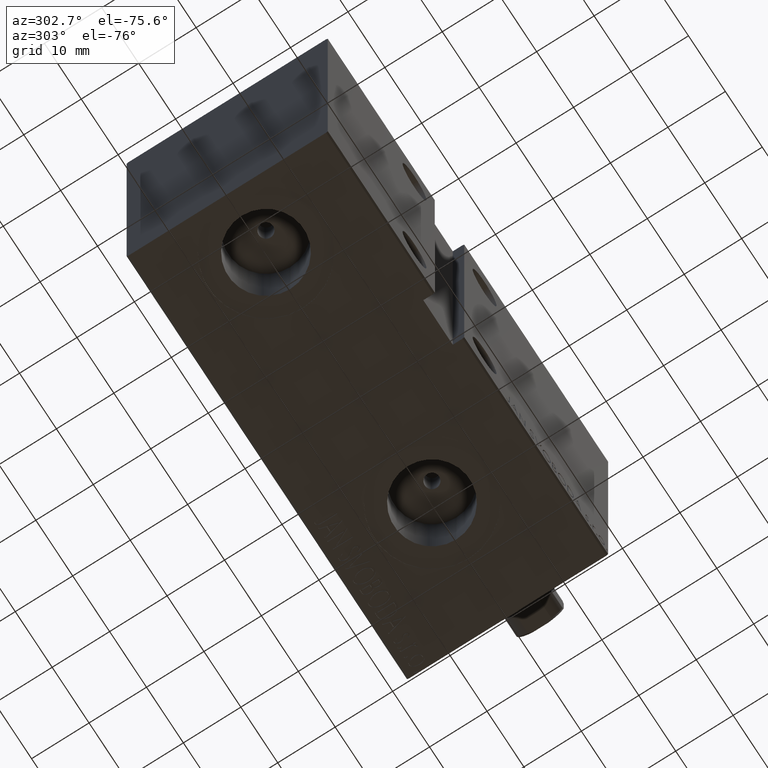
[diagram: clean part render]
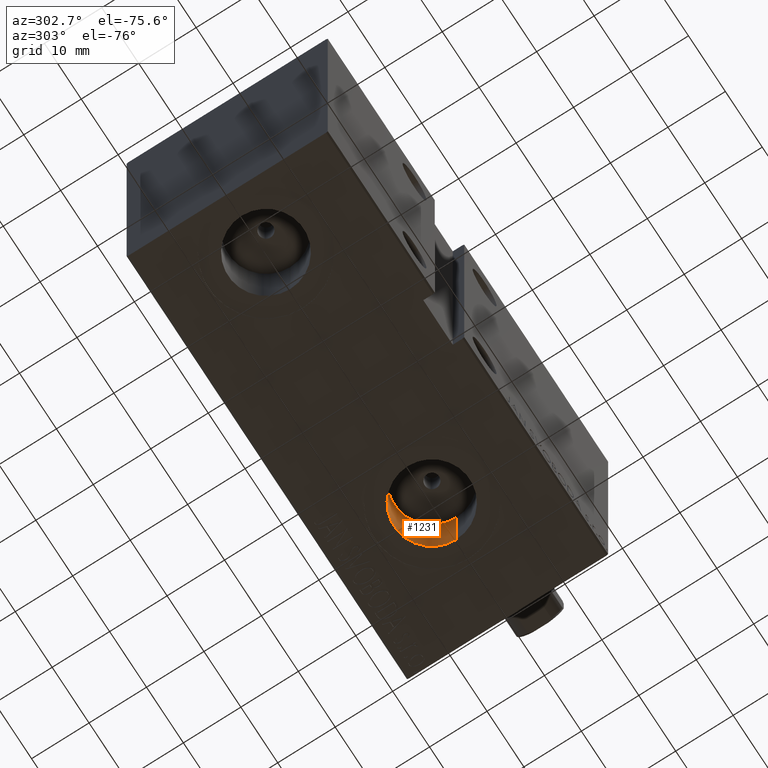
[diagram: same view with one face highlighted and labeled with its STEP entity id]
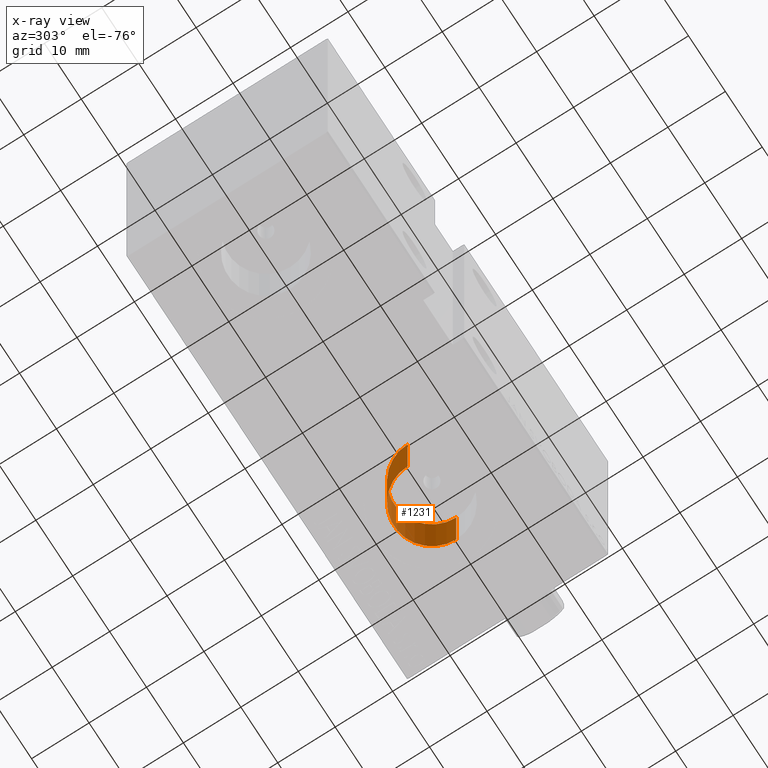
[diagram: x-ray of the same camera — body ghosted, the highlighted face saturated]
A machine part, auxiliary view. The second image highlights one B-rep face of the part: STEP entity #1231.
The next image is the same camera in x-ray: the body ghosted, the highlighted face saturated — about 2% of this face is hidden behind the body in this view.
In plain terms, the highlighted cylindrical surface (partial cylindrical patch) has radius 6.58 mm, axis along (-0, 0, -1).
Its self-contained STEP definition (entity closure, byte-faithful):
#1231 = ADVANCED_FACE ( 'NONE', ( #14482 ), #37949, .F. ) ;
#3617 = EDGE_CURVE ( 'NONE', #6877, #23824, #33247, .T. ) ;
#5884 = EDGE_CURVE ( 'NONE', #22611, #40420, #26877, .T. ) ;
#5910 = DIRECTION ( 'NONE',  ( -0.000000000000000000, -0.000000000000000000, -1.000000000000000000 ) ) ;
#6877 = VERTEX_POINT ( 'NONE', #39673 ) ;
#7262 = AXIS2_PLACEMENT_3D ( 'NONE', #23072, #36456, #37307 ) ;
#7433 = EDGE_CURVE ( 'NONE', #23824, #40420, #41546, .T. ) ;
#7926 = CARTESIAN_POINT ( 'NONE',  ( 20.50000000000000355, -2.726986211408916281E-15, -14.50000000000000355 ) ) ;
#10431 = DIRECTION ( 'NONE',  ( 0.000000000000000000, 0.000000000000000000, -1.000000000000000000 ) ) ;
#12020 = ORIENTED_EDGE ( 'NONE', *, *, #23174, .T. ) ;
#12904 = CARTESIAN_POINT ( 'NONE',  ( 27.08000000000000540, -1.921168617569958028E-15, -14.50000000000000355 ) ) ;
#13622 = CARTESIAN_POINT ( 'NONE',  ( 13.92000000000000171, -2.726986211408916281E-15, -27.40000000000000568 ) ) ;
#14482 = FACE_OUTER_BOUND ( 'NONE', #29431, .T. ) ;
#16377 = DIRECTION ( 'NONE',  ( -0.000000000000000000, -0.000000000000000000, -1.000000000000000000 ) ) ;
#18908 = CARTESIAN_POINT ( 'NONE',  ( 27.08000000000000540, -1.921168617569958028E-15, -27.40000000000000568 ) ) ;
#22328 = AXIS2_PLACEMENT_3D ( 'NONE', #7926, #16377, #35531 ) ;
#22611 = VERTEX_POINT ( 'NONE', #18908 ) ;
#22922 = DIRECTION ( 'NONE',  ( -1.000000000000000000, 0.000000000000000000, 0.000000000000000000 ) ) ;
#23072 = CARTESIAN_POINT ( 'NONE',  ( 20.50000000000000355, -2.726986211408916281E-15, -27.40000000000000568 ) ) ;
#23174 = EDGE_CURVE ( 'NONE', #6877, #22611, #35933, .T. ) ;
#23357 = CARTESIAN_POINT ( 'NONE',  ( 20.50000000000000355, -2.726986211408916281E-15, -14.50000000000000355 ) ) ;
#23433 = VECTOR ( 'NONE', #34118, 1000.000000000000000 ) ;
#23824 = VERTEX_POINT ( 'NONE', #28107 ) ;
#26877 = CIRCLE ( 'NONE', #7262, 6.580000000000002736 ) ;
#28107 = CARTESIAN_POINT ( 'NONE',  ( 13.92000000000000171, -2.726986211408916281E-15, -14.50000000000000355 ) ) ;
#29431 = EDGE_LOOP ( 'NONE', ( #41021, #12020, #36464, #31016 ) ) ;
#31016 = ORIENTED_EDGE ( 'NONE', *, *, #7433, .F. ) ;
#31866 = AXIS2_PLACEMENT_3D ( 'NONE', #23357, #10431, #22922 ) ;
#33247 = CIRCLE ( 'NONE', #31866, 6.580000000000002736 ) ;
#34118 = DIRECTION ( 'NONE',  ( -0.000000000000000000, -0.000000000000000000, -1.000000000000000000 ) ) ;
#35531 = DIRECTION ( 'NONE',  ( -1.000000000000000000, 0.000000000000000000, 0.000000000000000000 ) ) ;
#35933 = LINE ( 'NONE', #12904, #43246 ) ;
#36456 = DIRECTION ( 'NONE',  ( 0.000000000000000000, 0.000000000000000000, -1.000000000000000000 ) ) ;
#36464 = ORIENTED_EDGE ( 'NONE', *, *, #5884, .T. ) ;
#37307 = DIRECTION ( 'NONE',  ( -1.000000000000000000, 0.000000000000000000, 0.000000000000000000 ) ) ;
#37949 = CYLINDRICAL_SURFACE ( 'NONE', #22328, 6.580000000000002736 ) ;
#39673 = CARTESIAN_POINT ( 'NONE',  ( 27.08000000000000540, -1.921168617569958028E-15, -14.50000000000000355 ) ) ;
#40420 = VERTEX_POINT ( 'NONE', #13622 ) ;
#40680 = CARTESIAN_POINT ( 'NONE',  ( 13.92000000000000171, -2.726986211408916281E-15, -14.50000000000000355 ) ) ;
#41021 = ORIENTED_EDGE ( 'NONE', *, *, #3617, .F. ) ;
#41546 = LINE ( 'NONE', #40680, #23433 ) ;
#43246 = VECTOR ( 'NONE', #5910, 1000.000000000000000 ) ;